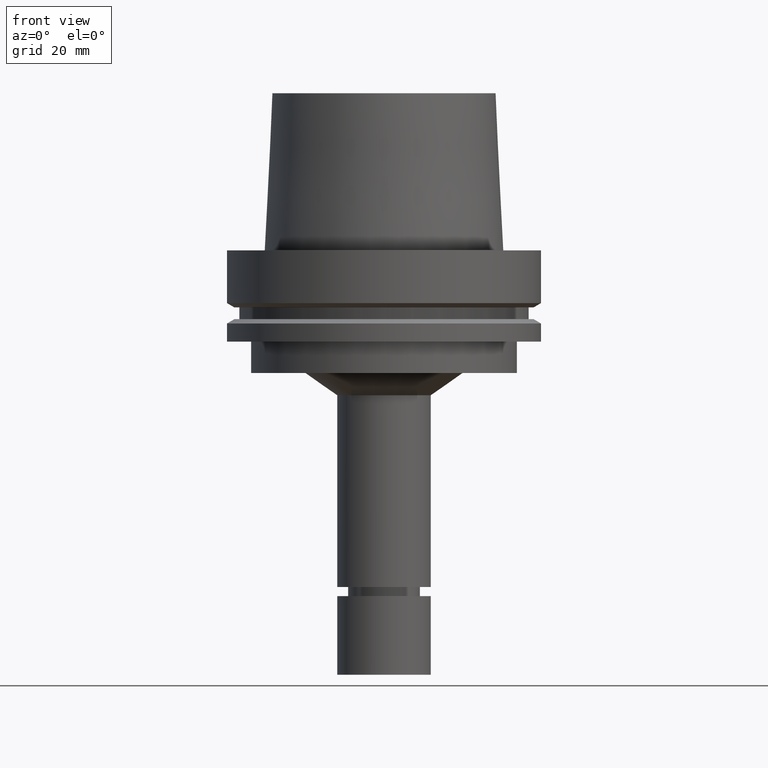
[diagram: clean part render]
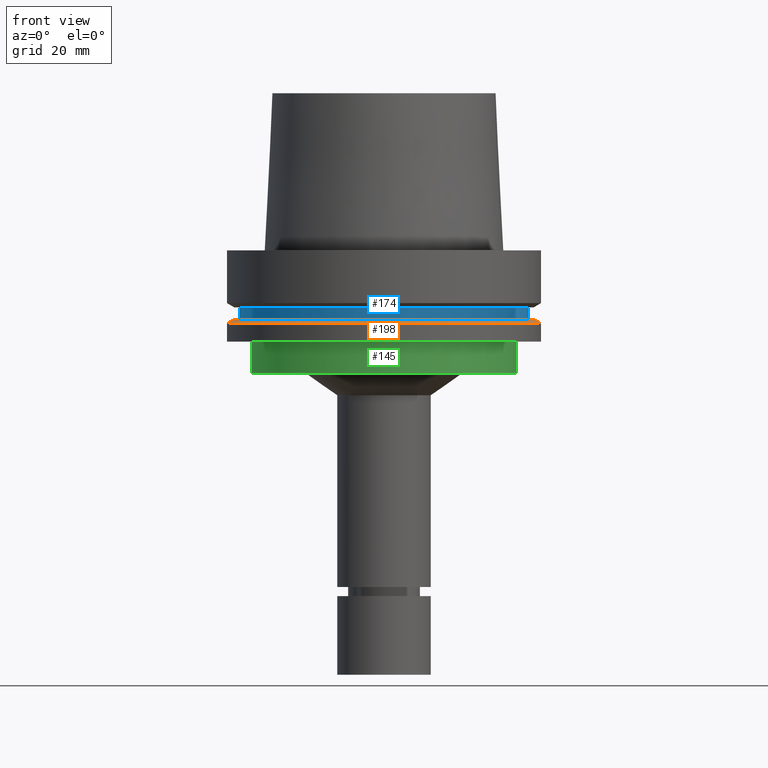
[diagram: same view with three faces highlighted in distinct colors, each labeled with its STEP entity id]
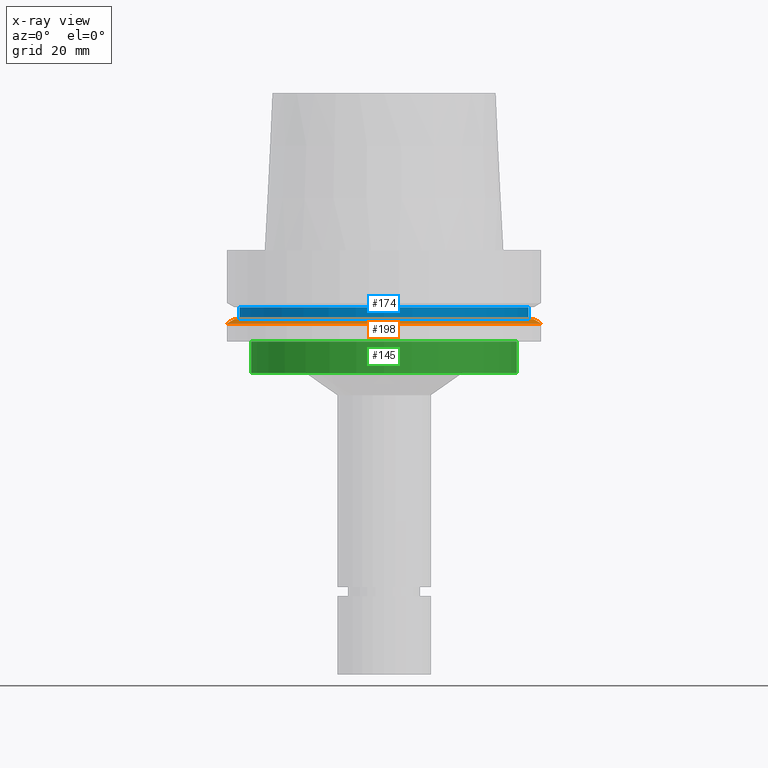
[diagram: x-ray of the same camera — body ghosted, the three highlighted faces saturated]
A machine part, front view with three faces highlighted in distinct colors.
The next image is the same camera in x-ray (body ghosted, the three faces saturated) — at least one of them is partly hidden behind the body in this view.
Their STEP definitions:

[orange] entity #198 — the highlighted conical surface has half-angle 60 deg.
#124=EDGE_CURVE('Unnamed[1]',#287,#287,#288,.T.);
#134=EDGE_CURVE('Unnamed[1]',#301,#301,#302,.T.);
#198=ADVANCED_FACE('Unnamed[1]',(#401,#402),#403,.T.);
#287=VERTEX_POINT('',#504);
#288=CIRCLE('',#505,50.0);
#301=VERTEX_POINT('',#521);
#302=CIRCLE('',#522,47.62259526);
#401=FACE_BOUND('',#645,.T.);
#402=FACE_BOUND('',#646,.T.);
#403=CONICAL_SURFACE('',#647,48.81129763,1.04719755328238);
#504=CARTESIAN_POINT('',(1.42350465615161E-015,50.0,-23.24759526));
#505=AXIS2_PLACEMENT_3D('',#724,#725,#726);
#521=CARTESIAN_POINT('',(1.33945743656742E-015,47.62259526,-21.875));
#522=AXIS2_PLACEMENT_3D('',#737,#738,#739);
#645=EDGE_LOOP('',(#852));
#646=EDGE_LOOP('',(#853));
#647=AXIS2_PLACEMENT_3D('',#854,#855,#856);
#724=CARTESIAN_POINT('',(1.42350465615161E-015,2.84700931230322E-015,-23.24759526));
#725=DIRECTION('',(6.12323399573677E-017,1.22464679914672E-016,-1.0));
#726=DIRECTION('',(-1.23259516440783E-032,1.0,1.22464679914672E-016));
#737=CARTESIAN_POINT('',(1.33945743656742E-015,2.67891487313484E-015,-21.875));
#738=DIRECTION('',(6.12323399573676E-017,1.22464679914752E-016,-1.0));
#739=DIRECTION('',(-1.23259516440726E-032,1.0,1.22464679914752E-016));
#852=ORIENTED_EDGE('',*,*,#124,.F.);
#853=ORIENTED_EDGE('',*,*,#134,.T.);
#854=CARTESIAN_POINT('',(1.38148104635951E-015,2.76296209271903E-015,-22.56129763));
#855=DIRECTION('',(6.12323399573677E-017,1.22464679914711E-016,-1.0));
#856=DIRECTION('',(-1.23259516440829E-032,1.0,1.22464679914711E-016));

[blue] entity #174 — the highlighted cylindrical surface (bore or boss wall) has radius 46 mm, axis along (0, 0, -1).
#84=EDGE_CURVE('Unnamed[1]',#226,#226,#227,.T.);
#110=EDGE_CURVE('Unnamed[1]',#265,#265,#266,.T.);
#174=ADVANCED_FACE('Unnamed[1]',(#363,#364),#365,.T.);
#226=VERTEX_POINT('',#427);
#227=CIRCLE('',#428,46.0);
#265=VERTEX_POINT('',#476);
#266=CIRCLE('',#477,46.0);
#363=FACE_BOUND('',#598,.T.);
#364=FACE_BOUND('',#599,.T.);
#365=CYLINDRICAL_SURFACE('',#600,46.0);
#427=CARTESIAN_POINT('',(1.33945743656742E-015,46.0,-21.875));
#428=AXIS2_PLACEMENT_3D('',#660,#661,#662);
#476=CARTESIAN_POINT('',(1.10983616172729E-015,46.0,-18.125));
#477=AXIS2_PLACEMENT_3D('',#700,#701,#702);
#598=EDGE_LOOP('',(#808));
#599=EDGE_LOOP('',(#809));
#600=AXIS2_PLACEMENT_3D('',#810,#811,#812);
#660=CARTESIAN_POINT('',(1.33945743656742E-015,2.67891487313484E-015,-21.875));
#661=DIRECTION('',(6.12323399573677E-017,1.22464679914716E-016,-1.0));
#662=DIRECTION('',(-1.23259516440783E-032,1.0,1.22464679914716E-016));
#700=CARTESIAN_POINT('',(1.10983616172729E-015,2.21967232345458E-015,-18.125));
#701=DIRECTION('',(6.12323399573677E-017,1.22464679914716E-016,-1.0));
#702=DIRECTION('',(-1.23259516440783E-032,1.0,1.22464679914716E-016));
#808=ORIENTED_EDGE('',*,*,#84,.F.);
#809=ORIENTED_EDGE('',*,*,#110,.T.);
#810=CARTESIAN_POINT('',(1.22464679914735E-015,2.44929359829471E-015,-20.0));
#811=DIRECTION('',(6.12323399573677E-017,1.22464679914716E-016,-1.0));
#812=DIRECTION('',(-1.23259516440783E-032,1.0,1.22464679914716E-016));

[green] entity #145 — the highlighted cylindrical surface (bore or boss wall) has radius 42.5 mm, axis along (0, 0, -1).
#93=EDGE_CURVE('Unnamed[1]',#238,#238,#239,.T.);
#145=ADVANCED_FACE('Unnamed[1]',(#318,#319),#320,.T.);
#185=EDGE_CURVE('Unnamed[1]',#381,#381,#382,.T.);
#238=VERTEX_POINT('',#442);
#239=CIRCLE('',#443,42.5);
#318=FACE_BOUND('',#542,.T.);
#319=FACE_BOUND('',#543,.T.);
#320=CYLINDRICAL_SURFACE('',#544,42.5);
#381=VERTEX_POINT('',#620);
#382=CIRCLE('',#621,42.5);
#442=CARTESIAN_POINT('',(1.77573785876366E-015,42.5,-29.0));
#443=AXIS2_PLACEMENT_3D('',#670,#671,#672);
#542=EDGE_LOOP('',(#756));
#543=EDGE_LOOP('',(#757));
#544=AXIS2_PLACEMENT_3D('',#758,#759,#760);
#620=CARTESIAN_POINT('',(2.38806125833734E-015,42.5,-39.0));
#621=AXIS2_PLACEMENT_3D('',#830,#831,#832);
#670=CARTESIAN_POINT('',(1.77573785876366E-015,3.55147571752733E-015,-29.0));
#671=DIRECTION('',(6.12323399573677E-017,1.22464679914687E-016,-1.0));
#672=DIRECTION('',(-1.23259516440783E-032,1.0,1.22464679914687E-016));
#756=ORIENTED_EDGE('',*,*,#185,.F.);
#757=ORIENTED_EDGE('',*,*,#93,.T.);
#758=CARTESIAN_POINT('',(2.0818995585505E-015,4.163799117101E-015,-34.0));
#759=DIRECTION('',(6.12323399573677E-017,1.22464679914687E-016,-1.0));
#760=DIRECTION('',(-1.23259516440783E-032,1.0,1.22464679914687E-016));
#830=CARTESIAN_POINT('',(2.38806125833734E-015,4.77612251667468E-015,-39.0));
#831=DIRECTION('',(6.12323399573677E-017,1.22464679914687E-016,-1.0));
#832=DIRECTION('',(-1.23259516440783E-032,1.0,1.22464679914687E-016));